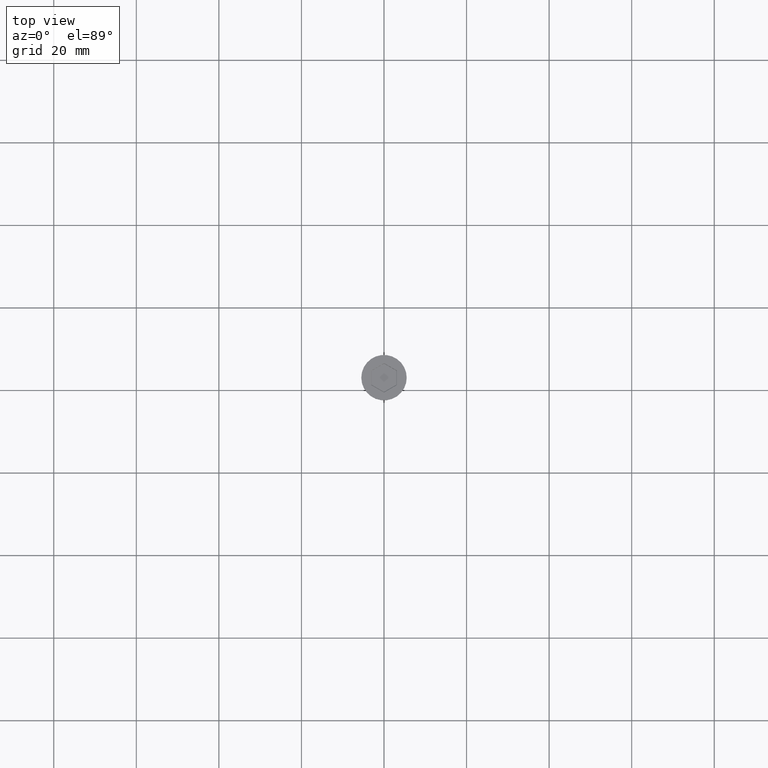
[diagram: clean part render]
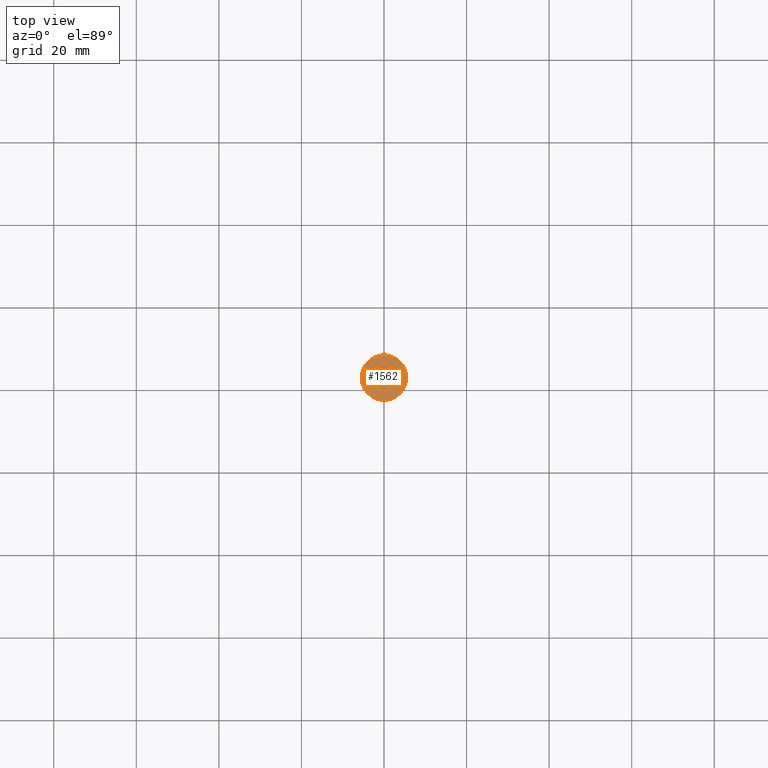
[diagram: same view with one face highlighted and labeled with its STEP entity id]
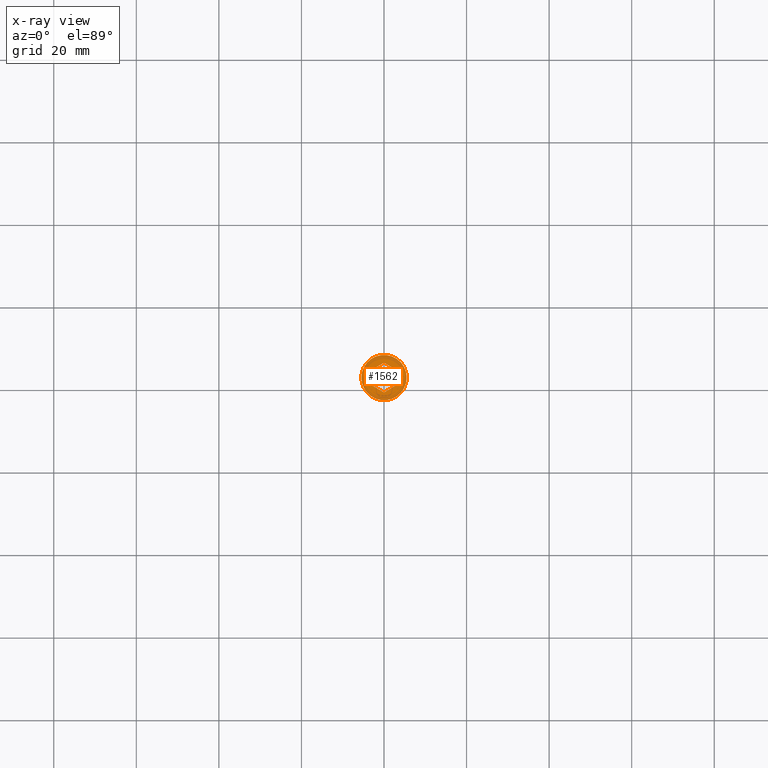
[diagram: x-ray of the same camera — body ghosted, the highlighted face saturated]
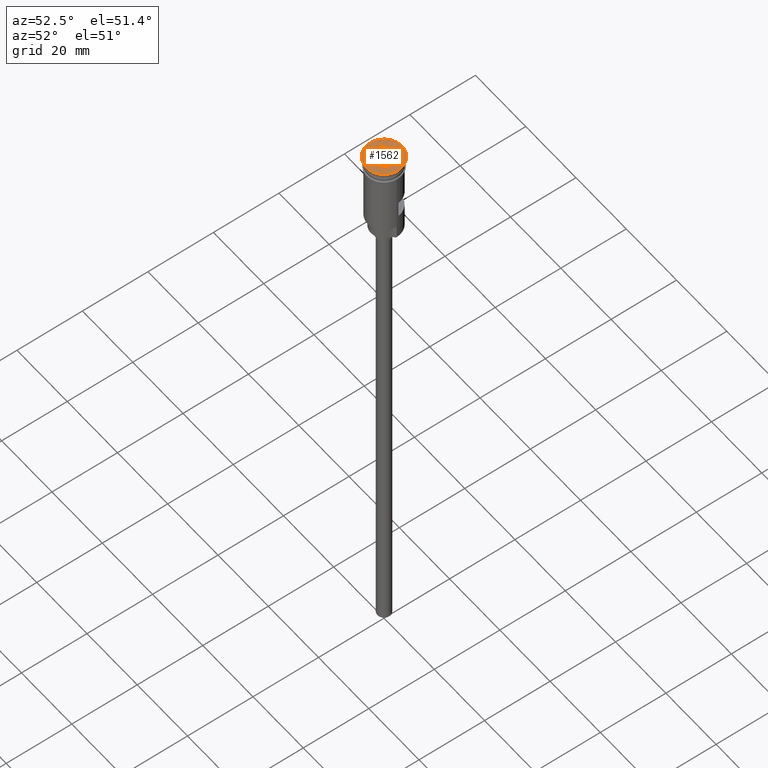
[diagram: same view with one face highlighted and labeled with its STEP entity id]
A machine part, top view. The second image highlights one B-rep face of the part: STEP entity #1562.
The next image is the same camera in x-ray: the body ghosted, the highlighted face saturated — about 0% of this face is hidden behind the body in this view.
A second angle (auxiliary view) of the same face is appended — the face is thin or edge-on in the first view.
In plain terms, the highlighted planar face has unit normal (0, -0, 1).
Its self-contained STEP definition (entity closure, byte-faithful):
#23 = VECTOR ( 'NONE', #632, 1000.000000000000000 ) ;
#27 = ORIENTED_EDGE ( 'NONE', *, *, #912, .T. ) ;
#72 = VECTOR ( 'NONE', #349, 1000.000000000000114 ) ;
#81 = VECTOR ( 'NONE', #375, 1000.000000000000000 ) ;
#88 = CARTESIAN_POINT ( 'NONE',  ( -1.958864205101993824E-16, -3.579571668975658927, 0.000000000000000000 ) ) ;
#97 = EDGE_CURVE ( 'NONE', #861, #1369, #1555, .T. ) ;
#99 = ORIENTED_EDGE ( 'NONE', *, *, #778, .T. ) ;
#104 = VERTEX_POINT ( 'NONE', #1433 ) ;
#132 = ORIENTED_EDGE ( 'NONE', *, *, #1554, .T. ) ;
#135 = VECTOR ( 'NONE', #846, 1000.000000000000000 ) ;
#144 = VERTEX_POINT ( 'NONE', #890 ) ;
#149 = LINE ( 'NONE', #1228, #1033 ) ;
#162 = CARTESIAN_POINT ( 'NONE',  ( 0.000000000000000000, 0.000000000000000000, 0.000000000000000000 ) ) ;
#174 = CARTESIAN_POINT ( 'NONE',  ( 0.000000000000000000, 0.000000000000000000, 0.000000000000000000 ) ) ;
#203 = LINE ( 'NONE', #1331, #135 ) ;
#210 = CARTESIAN_POINT ( 'NONE',  ( 0.000000000000000000, 0.000000000000000000, 0.000000000000000000 ) ) ;
#237 = CARTESIAN_POINT ( 'NONE',  ( 3.099999999999982769, -1.789785834487828353, 0.000000000000000000 ) ) ;
#239 = ORIENTED_EDGE ( 'NONE', *, *, #1445, .T. ) ;
#259 = CARTESIAN_POINT ( 'NONE',  ( -3.099999999999983213, -1.789785834487829241, 0.000000000000000000 ) ) ;
#299 = DIRECTION ( 'NONE',  ( 1.000000000000000000, 0.000000000000000000, 0.000000000000000000 ) ) ;
#302 = DIRECTION ( 'NONE',  ( -1.251928832280966188E-16, -1.000000000000000000, 0.000000000000000000 ) ) ;
#349 = DIRECTION ( 'NONE',  ( -0.8660254037844385966, -0.5000000000000001110, 0.000000000000000000 ) ) ;
#356 = DIRECTION ( 'NONE',  ( -0.000000000000000000, -0.000000000000000000, 1.000000000000000000 ) ) ;
#375 = DIRECTION ( 'NONE',  ( 0.000000000000000000, 1.000000000000000000, 0.000000000000000000 ) ) ;
#396 = AXIS2_PLACEMENT_3D ( 'NONE', #162, #543, #299 ) ;
#451 = CARTESIAN_POINT ( 'NONE',  ( 0.04999999999999141936, -3.550704155516182237, 0.000000000000000000 ) ) ;
#496 = VERTEX_POINT ( 'NONE', #1189 ) ;
#543 = DIRECTION ( 'NONE',  ( -0.000000000000000000, -0.000000000000000000, 1.000000000000000000 ) ) ;
#548 = VERTEX_POINT ( 'NONE', #259 ) ;
#613 = EDGE_LOOP ( 'NONE', ( #644, #239, #657, #99, #1350, #27 ) ) ;
#621 = CIRCLE ( 'NONE', #777, 5.500000000000000000 ) ;
#632 = DIRECTION ( 'NONE',  ( 0.8660254037844387076, 0.4999999999999998890, 0.000000000000000000 ) ) ;
#634 = CARTESIAN_POINT ( 'NONE',  ( -5.500000000000000000, 6.735557395310442023E-16, 0.000000000000000000 ) ) ;
#644 = ORIENTED_EDGE ( 'NONE', *, *, #1487, .T. ) ;
#646 = DIRECTION ( 'NONE',  ( 1.000000000000000000, 0.000000000000000000, 0.000000000000000000 ) ) ;
#657 = ORIENTED_EDGE ( 'NONE', *, *, #1055, .T. ) ;
#736 = CARTESIAN_POINT ( 'NONE',  ( -3.099999999999983213, 1.732050807568876971, 0.000000000000000000 ) ) ;
#774 = PLANE ( 'NONE',  #980 ) ;
#777 = AXIS2_PLACEMENT_3D ( 'NONE', #210, #356, #927 ) ;
#778 = EDGE_CURVE ( 'NONE', #144, #861, #1412, .T. ) ;
#846 = DIRECTION ( 'NONE',  ( -0.8660254037844387076, 0.4999999999999998335, 0.000000000000000000 ) ) ;
#861 = VERTEX_POINT ( 'NONE', #237 ) ;
#890 = CARTESIAN_POINT ( 'NONE',  ( 3.099999999999983213, 1.789785834487831462, 0.000000000000000000 ) ) ;
#893 = VECTOR ( 'NONE', #302, 1000.000000000000000 ) ;
#912 = EDGE_CURVE ( 'NONE', #1369, #548, #203, .T. ) ;
#927 = DIRECTION ( 'NONE',  ( 1.000000000000000000, 0.000000000000000000, 0.000000000000000000 ) ) ;
#980 = AXIS2_PLACEMENT_3D ( 'NONE', #174, #1383, #646 ) ;
#1033 = VECTOR ( 'NONE', #1380, 1000.000000000000114 ) ;
#1041 = FACE_BOUND ( 'NONE', #613, .T. ) ;
#1047 = VERTEX_POINT ( 'NONE', #634 ) ;
#1055 = EDGE_CURVE ( 'NONE', #1086, #144, #149, .T. ) ;
#1086 = VERTEX_POINT ( 'NONE', #1120 ) ;
#1120 = CARTESIAN_POINT ( 'NONE',  ( 6.103073414120078086E-16, 3.579571668975660259, 0.000000000000000000 ) ) ;
#1122 = CARTESIAN_POINT ( 'NONE',  ( -0.04999999999999187039, 3.550704155516183125, 0.000000000000000000 ) ) ;
#1160 = CARTESIAN_POINT ( 'NONE',  ( 3.099999999999982769, -1.732050807568876083, 0.000000000000000000 ) ) ;
#1189 = CARTESIAN_POINT ( 'NONE',  ( 5.500000000000000000, 0.000000000000000000, 0.000000000000000000 ) ) ;
#1228 = CARTESIAN_POINT ( 'NONE',  ( 3.049999999999991829, 1.818653347947307708, 0.000000000000000000 ) ) ;
#1244 = LINE ( 'NONE', #736, #81 ) ;
#1265 = EDGE_CURVE ( 'NONE', #1047, #496, #621, .T. ) ;
#1331 = CARTESIAN_POINT ( 'NONE',  ( -3.049999999999991385, -1.818653347947305932, 0.000000000000000000 ) ) ;
#1350 = ORIENTED_EDGE ( 'NONE', *, *, #97, .T. ) ;
#1369 = VERTEX_POINT ( 'NONE', #88 ) ;
#1370 = CIRCLE ( 'NONE', #396, 5.500000000000000000 ) ;
#1380 = DIRECTION ( 'NONE',  ( 0.8660254037844388186, -0.4999999999999997780, 0.000000000000000000 ) ) ;
#1383 = DIRECTION ( 'NONE',  ( 0.000000000000000000, -0.000000000000000000, 1.000000000000000000 ) ) ;
#1399 = EDGE_LOOP ( 'NONE', ( #132, #1475 ) ) ;
#1402 = FACE_OUTER_BOUND ( 'NONE', #1399, .T. ) ;
#1412 = LINE ( 'NONE', #1160, #893 ) ;
#1433 = CARTESIAN_POINT ( 'NONE',  ( -3.099999999999983213, 1.789785834487829908, 0.000000000000000000 ) ) ;
#1445 = EDGE_CURVE ( 'NONE', #104, #1086, #1478, .T. ) ;
#1475 = ORIENTED_EDGE ( 'NONE', *, *, #1265, .T. ) ;
#1478 = LINE ( 'NONE', #1122, #23 ) ;
#1487 = EDGE_CURVE ( 'NONE', #548, #104, #1244, .T. ) ;
#1554 = EDGE_CURVE ( 'NONE', #496, #1047, #1370, .T. ) ;
#1555 = LINE ( 'NONE', #451, #72 ) ;
#1562 = ADVANCED_FACE ( 'NONE', ( #1041, #1402 ), #774, .T. ) ;